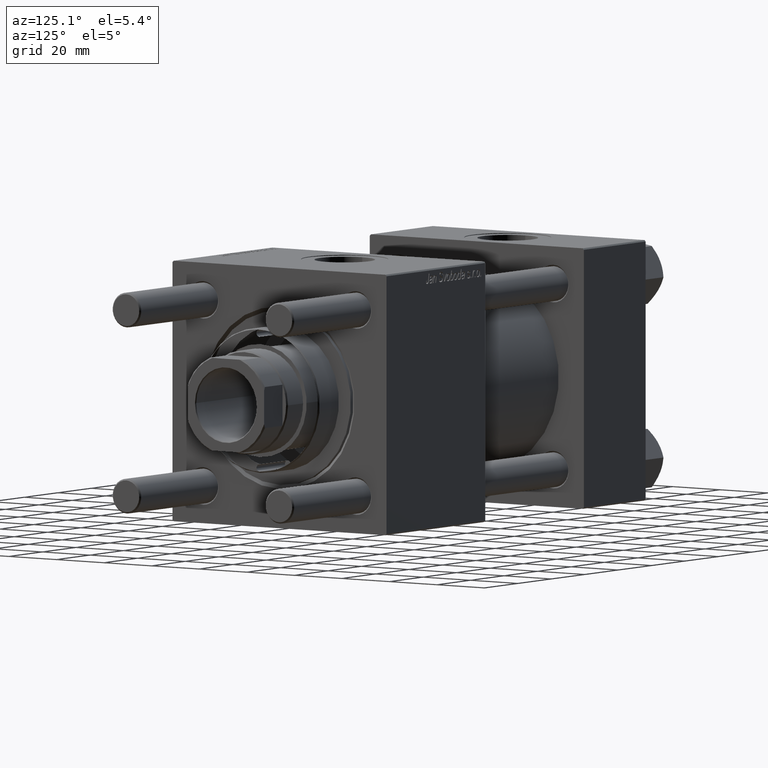
[diagram: clean part render]
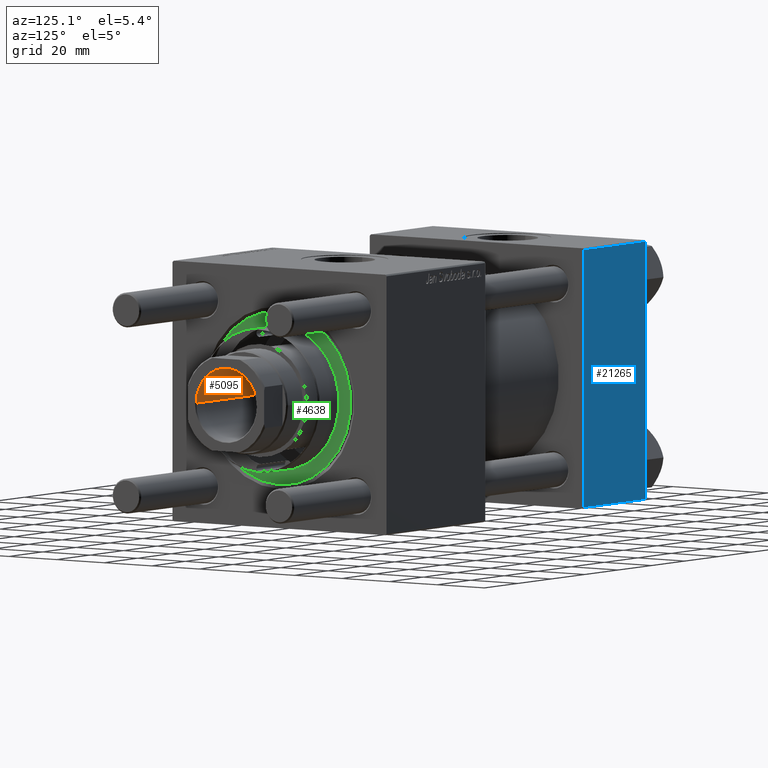
[diagram: same view with three faces highlighted in distinct colors, each labeled with its STEP entity id]
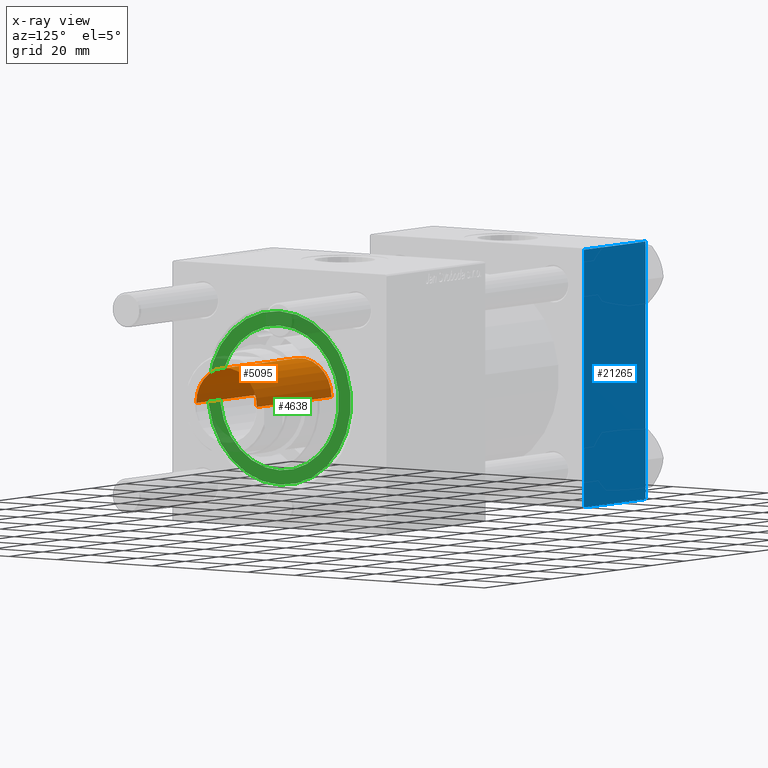
[diagram: x-ray of the same camera — body ghosted, the three highlighted faces saturated]
A machine part, auxiliary view with three faces highlighted in distinct colors.
The next image is the same camera in x-ray (body ghosted, the three faces saturated) — at least one of them is partly hidden behind the body in this view.
Their STEP definitions:

[orange] entity #5095 — the highlighted cylindrical surface (partial cylindrical patch) has radius 12.75 mm, axis along (1, 0, 0).
#1553 = CARTESIAN_POINT ( 'NONE',  ( -12.74999999999998934, 1.561424668912873928E-15, 105.0000000000000284 ) ) ;
#2107 = VERTEX_POINT ( 'NONE', #1553 ) ;
#2605 = DIRECTION ( 'NONE',  ( 0.000000000000000000, 0.000000000000000000, 1.000000000000000000 ) ) ;
#3294 = AXIS2_PLACEMENT_3D ( 'NONE', #13376, #13945, #8494 ) ;
#4168 = CARTESIAN_POINT ( 'NONE',  ( 0.000000000000000000, 0.000000000000000000, 105.0000000000000284 ) ) ;
#5095 = ADVANCED_FACE ( 'NONE', ( #54411 ), #32266, .F. ) ;
#6063 = EDGE_LOOP ( 'NONE', ( #15835, #28452, #41742, #7478 ) ) ;
#7198 = DIRECTION ( 'NONE',  ( 1.000000000000000000, 0.000000000000000000, 0.000000000000000000 ) ) ;
#7478 = ORIENTED_EDGE ( 'NONE', *, *, #46207, .F. ) ;
#8153 = LINE ( 'NONE', #8713, #33524 ) ;
#8494 = DIRECTION ( 'NONE',  ( 1.000000000000000000, 0.000000000000000000, 0.000000000000000000 ) ) ;
#8675 = EDGE_CURVE ( 'NONE', #2107, #31880, #39229, .T. ) ;
#8713 = CARTESIAN_POINT ( 'NONE',  ( 12.74999999999999112, 0.000000000000000000, 150.0000000000000284 ) ) ;
#9064 = DIRECTION ( 'NONE',  ( -0.000000000000000000, -0.000000000000000000, 1.000000000000000000 ) ) ;
#10033 = AXIS2_PLACEMENT_3D ( 'NONE', #50632, #2605, #7198 ) ;
#12522 = DIRECTION ( 'NONE',  ( 1.000000000000000000, 0.000000000000000000, 0.000000000000000000 ) ) ;
#13376 = CARTESIAN_POINT ( 'NONE',  ( 0.000000000000000000, 0.000000000000000000, 150.0000000000000284 ) ) ;
#13945 = DIRECTION ( 'NONE',  ( -0.000000000000000000, -0.000000000000000000, 1.000000000000000000 ) ) ;
#15835 = ORIENTED_EDGE ( 'NONE', *, *, #8675, .F. ) ;
#15878 = VECTOR ( 'NONE', #23983, 1000.000000000000000 ) ;
#19330 = VERTEX_POINT ( 'NONE', #46719 ) ;
#19465 = EDGE_CURVE ( 'NONE', #19330, #46949, #50472, .T. ) ;
#23983 = DIRECTION ( 'NONE',  ( -0.000000000000000000, -0.000000000000000000, 1.000000000000000000 ) ) ;
#28452 = ORIENTED_EDGE ( 'NONE', *, *, #31089, .T. ) ;
#31089 = EDGE_CURVE ( 'NONE', #2107, #19330, #46397, .T. ) ;
#31880 = VERTEX_POINT ( 'NONE', #39201 ) ;
#32266 = CYLINDRICAL_SURFACE ( 'NONE', #3294, 12.74999999999999112 ) ;
#33524 = VECTOR ( 'NONE', #56456, 1000.000000000000000 ) ;
#38321 = AXIS2_PLACEMENT_3D ( 'NONE', #4168, #9064, #12522 ) ;
#38657 = CARTESIAN_POINT ( 'NONE',  ( 12.74999999999999112, 0.000000000000000000, 149.7000000000000455 ) ) ;
#39201 = CARTESIAN_POINT ( 'NONE',  ( 12.74999999999998934, 0.000000000000000000, 105.0000000000000284 ) ) ;
#39229 = CIRCLE ( 'NONE', #38321, 12.74999999999998934 ) ;
#41742 = ORIENTED_EDGE ( 'NONE', *, *, #19465, .T. ) ;
#46207 = EDGE_CURVE ( 'NONE', #31880, #46949, #8153, .T. ) ;
#46397 = LINE ( 'NONE', #53900, #15878 ) ;
#46719 = CARTESIAN_POINT ( 'NONE',  ( -12.74999999999999112, 1.561424668912874125E-15, 149.7000000000000455 ) ) ;
#46949 = VERTEX_POINT ( 'NONE', #38657 ) ;
#50472 = CIRCLE ( 'NONE', #10033, 12.74999999999999112 ) ;
#50632 = CARTESIAN_POINT ( 'NONE',  ( 0.000000000000000000, 0.000000000000000000, 149.7000000000000455 ) ) ;
#53900 = CARTESIAN_POINT ( 'NONE',  ( -12.74999999999999112, 1.561424668912874125E-15, 150.0000000000000284 ) ) ;
#54411 = FACE_OUTER_BOUND ( 'NONE', #6063, .T. ) ;
#56456 = DIRECTION ( 'NONE',  ( -0.000000000000000000, -0.000000000000000000, 1.000000000000000000 ) ) ;

[blue] entity #21265 — the highlighted planar face has unit normal (0, 1, 0).
#1042 = CARTESIAN_POINT ( 'NONE',  ( 0.000000000000000000, 44.99999999999998579, -44.49999999999995737 ) ) ;
#1399 = VECTOR ( 'NONE', #54423, 1000.000000000000000 ) ;
#1414 = LINE ( 'NONE', #49439, #8582 ) ;
#3136 = EDGE_CURVE ( 'NONE', #39762, #7882, #22785, .T. ) ;
#3813 = VERTEX_POINT ( 'NONE', #45261 ) ;
#4126 = ORIENTED_EDGE ( 'NONE', *, *, #9750, .T. ) ;
#6116 = LINE ( 'NONE', #51232, #43856 ) ;
#7882 = VERTEX_POINT ( 'NONE', #1042 ) ;
#8582 = VECTOR ( 'NONE', #11209, 1000.000000000000000 ) ;
#9750 = EDGE_CURVE ( 'NONE', #3813, #7882, #6116, .T. ) ;
#9905 = DIRECTION ( 'NONE',  ( 1.000000000000000000, 0.000000000000000000, 0.000000000000000000 ) ) ;
#10282 = DIRECTION ( 'NONE',  ( -0.000000000000000000, 1.000000000000000000, 0.000000000000000000 ) ) ;
#11209 = DIRECTION ( 'NONE',  ( 0.000000000000000000, 0.000000000000000000, -1.000000000000000000 ) ) ;
#13923 = LINE ( 'NONE', #44123, #46346 ) ;
#20964 = CARTESIAN_POINT ( 'NONE',  ( 37.00000000000000000, 44.99999999999998579, 44.50000000000001421 ) ) ;
#21265 = ADVANCED_FACE ( 'NONE', ( #36154 ), #31842, .T. ) ;
#22785 = LINE ( 'NONE', #23652, #1399 ) ;
#23492 = DIRECTION ( 'NONE',  ( 0.000000000000000000, -0.000000000000000000, 1.000000000000000000 ) ) ;
#23652 = CARTESIAN_POINT ( 'NONE',  ( 0.000000000000000000, 44.99999999999998579, 45.00000000000001421 ) ) ;
#24643 = ORIENTED_EDGE ( 'NONE', *, *, #33124, .T. ) ;
#28882 = VERTEX_POINT ( 'NONE', #20964 ) ;
#31842 = PLANE ( 'NONE',  #38568 ) ;
#32701 = ORIENTED_EDGE ( 'NONE', *, *, #38025, .T. ) ;
#33124 = EDGE_CURVE ( 'NONE', #28882, #3813, #1414, .T. ) ;
#36154 = FACE_OUTER_BOUND ( 'NONE', #38213, .T. ) ;
#38025 = EDGE_CURVE ( 'NONE', #39762, #28882, #13923, .T. ) ;
#38213 = EDGE_LOOP ( 'NONE', ( #24643, #4126, #42562, #32701 ) ) ;
#38568 = AXIS2_PLACEMENT_3D ( 'NONE', #40202, #10282, #23492 ) ;
#39762 = VERTEX_POINT ( 'NONE', #55611 ) ;
#40202 = CARTESIAN_POINT ( 'NONE',  ( 37.00000000000000000, 44.99999999999998579, 45.00000000000001421 ) ) ;
#42562 = ORIENTED_EDGE ( 'NONE', *, *, #3136, .F. ) ;
#43856 = VECTOR ( 'NONE', #46090, 1000.000000000000000 ) ;
#44123 = CARTESIAN_POINT ( 'NONE',  ( 37.00000000000000000, 44.99999999999998579, 44.50000000000001421 ) ) ;
#45261 = CARTESIAN_POINT ( 'NONE',  ( 37.00000000000000000, 44.99999999999998579, -44.49999999999995737 ) ) ;
#46090 = DIRECTION ( 'NONE',  ( -1.000000000000000000, 0.000000000000000000, 0.000000000000000000 ) ) ;
#46346 = VECTOR ( 'NONE', #9905, 1000.000000000000000 ) ;
#49439 = CARTESIAN_POINT ( 'NONE',  ( 37.00000000000000000, 44.99999999999998579, 45.00000000000001421 ) ) ;
#51232 = CARTESIAN_POINT ( 'NONE',  ( 37.00000000000000000, 44.99999999999998579, -44.49999999999998579 ) ) ;
#54423 = DIRECTION ( 'NONE',  ( 0.000000000000000000, 0.000000000000000000, -1.000000000000000000 ) ) ;
#55611 = CARTESIAN_POINT ( 'NONE',  ( 0.000000000000000000, 44.99999999999998579, 44.50000000000001421 ) ) ;

[green] entity #4638 — the highlighted planar face has unit normal (1, 0, 0).
#897 = CIRCLE ( 'NONE', #2722, 30.00000000000000000 ) ;
#2089 = CARTESIAN_POINT ( 'NONE',  ( 0.000000000000000000, 0.000000000000000000, 28.69999999999999929 ) ) ;
#2161 = CARTESIAN_POINT ( 'NONE',  ( 30.00000000000000000, 3.673940397442059178E-15, 28.69999999999999929 ) ) ;
#2722 = AXIS2_PLACEMENT_3D ( 'NONE', #2089, #16428, #16146 ) ;
#4638 = ADVANCED_FACE ( 'NONE', ( #25529, #17178 ), #7990, .T. ) ;
#6242 = CARTESIAN_POINT ( 'NONE',  ( 0.000000000000000000, 0.000000000000000000, 28.69999999999999929 ) ) ;
#6966 = CARTESIAN_POINT ( 'NONE',  ( 0.000000000000000000, 0.000000000000000000, 28.69999999999999929 ) ) ;
#7990 = PLANE ( 'NONE',  #32706 ) ;
#8172 = AXIS2_PLACEMENT_3D ( 'NONE', #6966, #55843, #37758 ) ;
#9302 = EDGE_LOOP ( 'NONE', ( #32201, #13851 ) ) ;
#9671 = ORIENTED_EDGE ( 'NONE', *, *, #18877, .F. ) ;
#12876 = DIRECTION ( 'NONE',  ( 0.000000000000000000, 0.000000000000000000, 1.000000000000000000 ) ) ;
#13851 = ORIENTED_EDGE ( 'NONE', *, *, #43207, .T. ) ;
#15241 = EDGE_LOOP ( 'NONE', ( #9671, #43604 ) ) ;
#16146 = DIRECTION ( 'NONE',  ( 1.000000000000000000, 0.000000000000000000, 0.000000000000000000 ) ) ;
#16428 = DIRECTION ( 'NONE',  ( 0.000000000000000000, 0.000000000000000000, 1.000000000000000000 ) ) ;
#17178 = FACE_OUTER_BOUND ( 'NONE', #9302, .T. ) ;
#18877 = EDGE_CURVE ( 'NONE', #44527, #25568, #54215, .T. ) ;
#19256 = CARTESIAN_POINT ( 'NONE',  ( -30.00000000000000000, 0.000000000000000000, 28.69999999999999929 ) ) ;
#21981 = EDGE_CURVE ( 'NONE', #44991, #36936, #897, .T. ) ;
#22471 = DIRECTION ( 'NONE',  ( 0.000000000000000000, 0.000000000000000000, 1.000000000000000000 ) ) ;
#23500 = DIRECTION ( 'NONE',  ( 1.000000000000000000, 0.000000000000000000, 0.000000000000000000 ) ) ;
#25308 = CIRCLE ( 'NONE', #43702, 30.00000000000000000 ) ;
#25529 = FACE_BOUND ( 'NONE', #15241, .T. ) ;
#25568 = VERTEX_POINT ( 'NONE', #44942 ) ;
#25748 = CARTESIAN_POINT ( 'NONE',  ( -25.00000000000000000, 0.000000000000000000, 28.69999999999999929 ) ) ;
#32201 = ORIENTED_EDGE ( 'NONE', *, *, #21981, .T. ) ;
#32706 = AXIS2_PLACEMENT_3D ( 'NONE', #51416, #12876, #56587 ) ;
#36936 = VERTEX_POINT ( 'NONE', #2161 ) ;
#37758 = DIRECTION ( 'NONE',  ( 1.000000000000000000, 0.000000000000000000, 0.000000000000000000 ) ) ;
#40037 = DIRECTION ( 'NONE',  ( 1.000000000000000000, 0.000000000000000000, 0.000000000000000000 ) ) ;
#42961 = AXIS2_PLACEMENT_3D ( 'NONE', #6242, #46491, #23500 ) ;
#43207 = EDGE_CURVE ( 'NONE', #36936, #44991, #25308, .T. ) ;
#43604 = ORIENTED_EDGE ( 'NONE', *, *, #54446, .F. ) ;
#43702 = AXIS2_PLACEMENT_3D ( 'NONE', #44615, #22471, #40037 ) ;
#44527 = VERTEX_POINT ( 'NONE', #25748 ) ;
#44615 = CARTESIAN_POINT ( 'NONE',  ( 0.000000000000000000, 0.000000000000000000, 28.69999999999999929 ) ) ;
#44942 = CARTESIAN_POINT ( 'NONE',  ( 25.00000000000000000, 3.061616997868383043E-15, 28.69999999999999929 ) ) ;
#44991 = VERTEX_POINT ( 'NONE', #19256 ) ;
#46491 = DIRECTION ( 'NONE',  ( 0.000000000000000000, 0.000000000000000000, 1.000000000000000000 ) ) ;
#47540 = CIRCLE ( 'NONE', #42961, 25.00000000000000000 ) ;
#51416 = CARTESIAN_POINT ( 'NONE',  ( 0.000000000000000000, 0.000000000000000000, 28.69999999999999929 ) ) ;
#54215 = CIRCLE ( 'NONE', #8172, 25.00000000000000000 ) ;
#54446 = EDGE_CURVE ( 'NONE', #25568, #44527, #47540, .T. ) ;
#55843 = DIRECTION ( 'NONE',  ( 0.000000000000000000, 0.000000000000000000, 1.000000000000000000 ) ) ;
#56587 = DIRECTION ( 'NONE',  ( 1.000000000000000000, 0.000000000000000000, -0.000000000000000000 ) ) ;